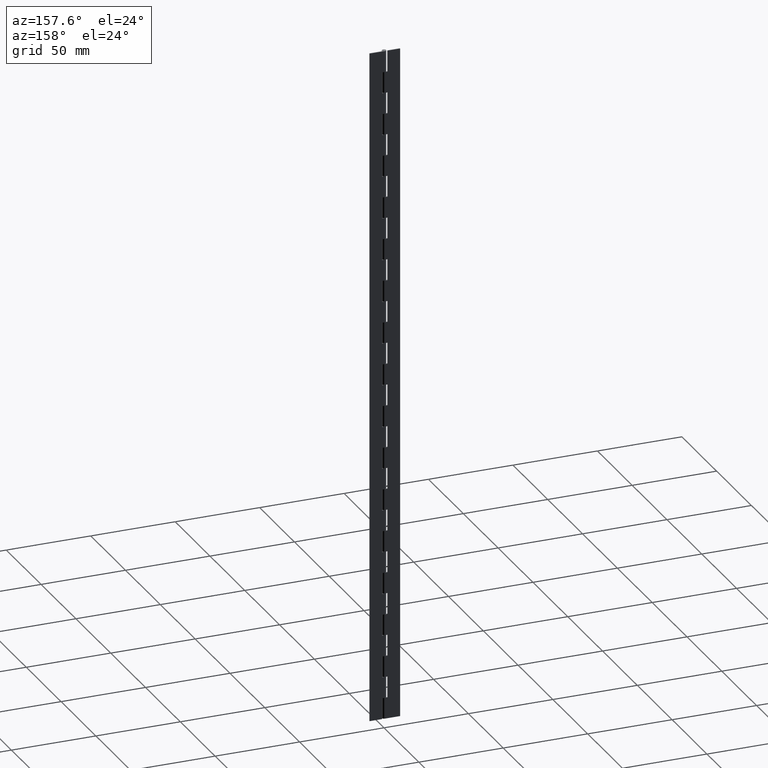
[diagram: clean part render]
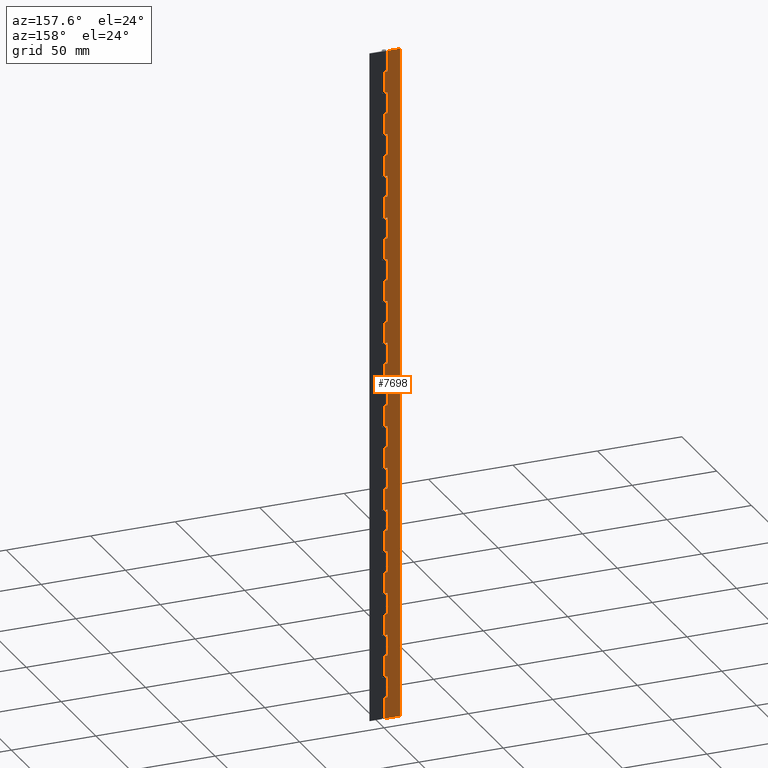
[diagram: same view with one face highlighted and labeled with its STEP entity id]
A machine part, auxiliary view. The second image highlights one B-rep face of the part: STEP entity #7698.
In plain terms, the highlighted face is a freeform B-spline surface patch.
Its self-contained STEP definition (entity closure, byte-faithful):
#4495=CARTESIAN_POINT('',(-1.599998000000000,1.249999999999972,387.500000000000000));
#4496=VERTEX_POINT('',#4495);
#4502=CARTESIAN_POINT('',(-1.599998000000000,1.250000000000000,400.0));
#4503=VERTEX_POINT('',#4502);
#4504=CARTESIAN_POINT('',(-1.599998000000000,1.249999999999972,387.500000000000000));
#4505=CARTESIAN_POINT('',(-1.599998000000000,1.250000000000000,400.0));
#4506=QUASI_UNIFORM_CURVE('',1,(#4504,#4505),.UNSPECIFIED.,.F.,.U.);
#4507=EDGE_CURVE('',#4496,#4503,#4506,.T.);
#4524=CARTESIAN_POINT('',(0.0,1.250000000000000,387.500000000000000));
#4525=VERTEX_POINT('',#4524);
#4545=CARTESIAN_POINT('',(0.0,1.250000000000000,387.500000000000000));
#4546=CARTESIAN_POINT('',(-1.599998000000000,1.249999999999972,387.500000000000000));
#4547=QUASI_UNIFORM_CURVE('',1,(#4545,#4546),.UNSPECIFIED.,.F.,.U.);
#4548=EDGE_CURVE('',#4525,#4496,#4547,.T.);
#4592=CARTESIAN_POINT('',(0.0,1.250000000000000,375.0));
#4593=VERTEX_POINT('',#4592);
#4650=CARTESIAN_POINT('',(-1.599998000000000,1.249999999999972,375.0));
#4651=VERTEX_POINT('',#4650);
#4657=CARTESIAN_POINT('',(-1.599998000000000,1.249999999999972,375.0));
#4658=CARTESIAN_POINT('',(0.0,1.250000000000000,375.0));
#4659=QUASI_UNIFORM_CURVE('',1,(#4657,#4658),.UNSPECIFIED.,.F.,.U.);
#4660=EDGE_CURVE('',#4651,#4593,#4659,.T.);
#4677=CARTESIAN_POINT('',(-1.599998000000000,1.249999999999972,362.500000000000000));
#4678=VERTEX_POINT('',#4677);
#4684=CARTESIAN_POINT('',(-1.599998000000000,1.249999999999972,362.500000000000000));
#4685=CARTESIAN_POINT('',(-1.599998000000000,1.249999999999972,375.0));
#4686=QUASI_UNIFORM_CURVE('',1,(#4684,#4685),.UNSPECIFIED.,.F.,.U.);
#4687=EDGE_CURVE('',#4678,#4651,#4686,.T.);
#4700=CARTESIAN_POINT('',(0.0,1.250000000000000,362.500000000000000));
#4701=VERTEX_POINT('',#4700);
#4721=CARTESIAN_POINT('',(0.0,1.250000000000000,362.500000000000000));
#4722=CARTESIAN_POINT('',(-1.599998000000000,1.249999999999972,362.500000000000000));
#4723=QUASI_UNIFORM_CURVE('',1,(#4721,#4722),.UNSPECIFIED.,.F.,.U.);
#4724=EDGE_CURVE('',#4701,#4678,#4723,.T.);
#4768=CARTESIAN_POINT('',(0.0,1.250000000000000,350.0));
#4769=VERTEX_POINT('',#4768);
#4826=CARTESIAN_POINT('',(-1.599998000000000,1.249999999999972,350.0));
#4827=VERTEX_POINT('',#4826);
#4833=CARTESIAN_POINT('',(-1.599998000000000,1.249999999999972,350.0));
#4834=CARTESIAN_POINT('',(0.0,1.250000000000000,350.0));
#4835=QUASI_UNIFORM_CURVE('',1,(#4833,#4834),.UNSPECIFIED.,.F.,.U.);
#4836=EDGE_CURVE('',#4827,#4769,#4835,.T.);
#4853=CARTESIAN_POINT('',(-1.599998000000000,1.249999999999972,337.500000000000000));
#4854=VERTEX_POINT('',#4853);
#4860=CARTESIAN_POINT('',(-1.599998000000000,1.249999999999972,337.500000000000000));
#4861=CARTESIAN_POINT('',(-1.599998000000000,1.249999999999972,350.0));
#4862=QUASI_UNIFORM_CURVE('',1,(#4860,#4861),.UNSPECIFIED.,.F.,.U.);
#4863=EDGE_CURVE('',#4854,#4827,#4862,.T.);
#4876=CARTESIAN_POINT('',(0.0,1.250000000000000,337.500000000000000));
#4877=VERTEX_POINT('',#4876);
#4897=CARTESIAN_POINT('',(0.0,1.250000000000000,337.500000000000000));
#4898=CARTESIAN_POINT('',(-1.599998000000000,1.249999999999972,337.500000000000000));
#4899=QUASI_UNIFORM_CURVE('',1,(#4897,#4898),.UNSPECIFIED.,.F.,.U.);
#4900=EDGE_CURVE('',#4877,#4854,#4899,.T.);
#4944=CARTESIAN_POINT('',(0.0,1.250000000000000,325.0));
#4945=VERTEX_POINT('',#4944);
#5002=CARTESIAN_POINT('',(-1.599998000000000,1.249999999999972,325.0));
#5003=VERTEX_POINT('',#5002);
#5009=CARTESIAN_POINT('',(-1.599998000000000,1.249999999999972,325.0));
#5010=CARTESIAN_POINT('',(0.0,1.250000000000000,325.0));
#5011=QUASI_UNIFORM_CURVE('',1,(#5009,#5010),.UNSPECIFIED.,.F.,.U.);
#5012=EDGE_CURVE('',#5003,#4945,#5011,.T.);
#5029=CARTESIAN_POINT('',(-1.599998000000000,1.249999999999972,312.500000000000000));
#5030=VERTEX_POINT('',#5029);
#5036=CARTESIAN_POINT('',(-1.599998000000000,1.249999999999972,312.500000000000000));
#5037=CARTESIAN_POINT('',(-1.599998000000000,1.249999999999972,325.0));
#5038=QUASI_UNIFORM_CURVE('',1,(#5036,#5037),.UNSPECIFIED.,.F.,.U.);
#5039=EDGE_CURVE('',#5030,#5003,#5038,.T.);
#5052=CARTESIAN_POINT('',(0.0,1.250000000000000,312.500000000000000));
#5053=VERTEX_POINT('',#5052);
#5073=CARTESIAN_POINT('',(0.0,1.250000000000000,312.500000000000000));
#5074=CARTESIAN_POINT('',(-1.599998000000000,1.249999999999972,312.500000000000000));
#5075=QUASI_UNIFORM_CURVE('',1,(#5073,#5074),.UNSPECIFIED.,.F.,.U.);
#5076=EDGE_CURVE('',#5053,#5030,#5075,.T.);
#5120=CARTESIAN_POINT('',(0.0,1.250000000000000,300.0));
#5121=VERTEX_POINT('',#5120);
#5178=CARTESIAN_POINT('',(-1.599998000000000,1.249999999999972,300.0));
#5179=VERTEX_POINT('',#5178);
#5185=CARTESIAN_POINT('',(-1.599998000000000,1.249999999999972,300.0));
#5186=CARTESIAN_POINT('',(0.0,1.250000000000000,300.0));
#5187=QUASI_UNIFORM_CURVE('',1,(#5185,#5186),.UNSPECIFIED.,.F.,.U.);
#5188=EDGE_CURVE('',#5179,#5121,#5187,.T.);
#5205=CARTESIAN_POINT('',(-1.599998000000000,1.249999999999972,287.500000000000000));
#5206=VERTEX_POINT('',#5205);
#5212=CARTESIAN_POINT('',(-1.599998000000000,1.249999999999972,287.500000000000000));
#5213=CARTESIAN_POINT('',(-1.599998000000000,1.249999999999972,300.0));
#5214=QUASI_UNIFORM_CURVE('',1,(#5212,#5213),.UNSPECIFIED.,.F.,.U.);
#5215=EDGE_CURVE('',#5206,#5179,#5214,.T.);
#5228=CARTESIAN_POINT('',(0.0,1.250000000000000,287.500000000000000));
#5229=VERTEX_POINT('',#5228);
#5249=CARTESIAN_POINT('',(0.0,1.250000000000000,287.500000000000000));
#5250=CARTESIAN_POINT('',(-1.599998000000000,1.249999999999972,287.500000000000000));
#5251=QUASI_UNIFORM_CURVE('',1,(#5249,#5250),.UNSPECIFIED.,.F.,.U.);
#5252=EDGE_CURVE('',#5229,#5206,#5251,.T.);
#5296=CARTESIAN_POINT('',(0.0,1.250000000000000,275.0));
#5297=VERTEX_POINT('',#5296);
#5354=CARTESIAN_POINT('',(-1.599998000000000,1.249999999999972,275.0));
#5355=VERTEX_POINT('',#5354);
#5361=CARTESIAN_POINT('',(-1.599998000000000,1.249999999999972,275.0));
#5362=CARTESIAN_POINT('',(0.0,1.250000000000000,275.0));
#5363=QUASI_UNIFORM_CURVE('',1,(#5361,#5362),.UNSPECIFIED.,.F.,.U.);
#5364=EDGE_CURVE('',#5355,#5297,#5363,.T.);
#5381=CARTESIAN_POINT('',(-1.599998000000000,1.249999999999972,262.500000000000000));
#5382=VERTEX_POINT('',#5381);
#5388=CARTESIAN_POINT('',(-1.599998000000000,1.249999999999972,262.500000000000000));
#5389=CARTESIAN_POINT('',(-1.599998000000000,1.249999999999972,275.0));
#5390=QUASI_UNIFORM_CURVE('',1,(#5388,#5389),.UNSPECIFIED.,.F.,.U.);
#5391=EDGE_CURVE('',#5382,#5355,#5390,.T.);
#5404=CARTESIAN_POINT('',(0.0,1.250000000000000,262.500000000000000));
#5405=VERTEX_POINT('',#5404);
#5425=CARTESIAN_POINT('',(0.0,1.250000000000000,262.500000000000000));
#5426=CARTESIAN_POINT('',(-1.599998000000000,1.249999999999972,262.500000000000000));
#5427=QUASI_UNIFORM_CURVE('',1,(#5425,#5426),.UNSPECIFIED.,.F.,.U.);
#5428=EDGE_CURVE('',#5405,#5382,#5427,.T.);
#5472=CARTESIAN_POINT('',(0.0,1.250000000000000,250.0));
#5473=VERTEX_POINT('',#5472);
#5530=CARTESIAN_POINT('',(-1.599998000000000,1.249999999999972,250.0));
#5531=VERTEX_POINT('',#5530);
#5537=CARTESIAN_POINT('',(-1.599998000000000,1.249999999999972,250.0));
#5538=CARTESIAN_POINT('',(0.0,1.250000000000000,250.0));
#5539=QUASI_UNIFORM_CURVE('',1,(#5537,#5538),.UNSPECIFIED.,.F.,.U.);
#5540=EDGE_CURVE('',#5531,#5473,#5539,.T.);
#5557=CARTESIAN_POINT('',(-1.599998000000000,1.249999999999972,237.500000000000000));
#5558=VERTEX_POINT('',#5557);
#5564=CARTESIAN_POINT('',(-1.599998000000000,1.249999999999972,237.500000000000000));
#5565=CARTESIAN_POINT('',(-1.599998000000000,1.249999999999972,250.0));
#5566=QUASI_UNIFORM_CURVE('',1,(#5564,#5565),.UNSPECIFIED.,.F.,.U.);
#5567=EDGE_CURVE('',#5558,#5531,#5566,.T.);
#5580=CARTESIAN_POINT('',(0.0,1.250000000000000,237.500000000000000));
#5581=VERTEX_POINT('',#5580);
#5601=CARTESIAN_POINT('',(0.0,1.250000000000000,237.500000000000000));
#5602=CARTESIAN_POINT('',(-1.599998000000000,1.249999999999972,237.500000000000000));
#5603=QUASI_UNIFORM_CURVE('',1,(#5601,#5602),.UNSPECIFIED.,.F.,.U.);
#5604=EDGE_CURVE('',#5581,#5558,#5603,.T.);
#5648=CARTESIAN_POINT('',(0.0,1.250000000000000,225.0));
#5649=VERTEX_POINT('',#5648);
#5706=CARTESIAN_POINT('',(-1.599998000000000,1.249999999999972,225.0));
#5707=VERTEX_POINT('',#5706);
#5713=CARTESIAN_POINT('',(-1.599998000000000,1.249999999999972,225.0));
#5714=CARTESIAN_POINT('',(0.0,1.250000000000000,225.0));
#5715=QUASI_UNIFORM_CURVE('',1,(#5713,#5714),.UNSPECIFIED.,.F.,.U.);
#5716=EDGE_CURVE('',#5707,#5649,#5715,.T.);
#5733=CARTESIAN_POINT('',(-1.599998000000000,1.249999999999972,212.500000000000000));
#5734=VERTEX_POINT('',#5733);
#5740=CARTESIAN_POINT('',(-1.599998000000000,1.249999999999972,212.500000000000000));
#5741=CARTESIAN_POINT('',(-1.599998000000000,1.249999999999972,225.0));
#5742=QUASI_UNIFORM_CURVE('',1,(#5740,#5741),.UNSPECIFIED.,.F.,.U.);
#5743=EDGE_CURVE('',#5734,#5707,#5742,.T.);
#5756=CARTESIAN_POINT('',(0.0,1.250000000000000,212.500000000000000));
#5757=VERTEX_POINT('',#5756);
#5777=CARTESIAN_POINT('',(0.0,1.250000000000000,212.500000000000000));
#5778=CARTESIAN_POINT('',(-1.599998000000000,1.249999999999972,212.500000000000000));
#5779=QUASI_UNIFORM_CURVE('',1,(#5777,#5778),.UNSPECIFIED.,.F.,.U.);
#5780=EDGE_CURVE('',#5757,#5734,#5779,.T.);
#5824=CARTESIAN_POINT('',(0.0,1.250000000000000,200.0));
#5825=VERTEX_POINT('',#5824);
#5882=CARTESIAN_POINT('',(-1.599998000000000,1.249999999999972,200.0));
#5883=VERTEX_POINT('',#5882);
#5889=CARTESIAN_POINT('',(-1.599998000000000,1.249999999999972,200.0));
#5890=CARTESIAN_POINT('',(0.0,1.250000000000000,200.0));
#5891=QUASI_UNIFORM_CURVE('',1,(#5889,#5890),.UNSPECIFIED.,.F.,.U.);
#5892=EDGE_CURVE('',#5883,#5825,#5891,.T.);
#5909=CARTESIAN_POINT('',(-1.599998000000000,1.249999999999972,187.500000000000000));
#5910=VERTEX_POINT('',#5909);
#5916=CARTESIAN_POINT('',(-1.599998000000000,1.249999999999972,187.500000000000000));
#5917=CARTESIAN_POINT('',(-1.599998000000000,1.249999999999972,200.0));
#5918=QUASI_UNIFORM_CURVE('',1,(#5916,#5917),.UNSPECIFIED.,.F.,.U.);
#5919=EDGE_CURVE('',#5910,#5883,#5918,.T.);
#5932=CARTESIAN_POINT('',(0.0,1.250000000000000,187.500000000000000));
#5933=VERTEX_POINT('',#5932);
#5953=CARTESIAN_POINT('',(0.0,1.250000000000000,187.500000000000000));
#5954=CARTESIAN_POINT('',(-1.599998000000000,1.249999999999972,187.500000000000000));
#5955=QUASI_UNIFORM_CURVE('',1,(#5953,#5954),.UNSPECIFIED.,.F.,.U.);
#5956=EDGE_CURVE('',#5933,#5910,#5955,.T.);
#6000=CARTESIAN_POINT('',(0.0,1.250000000000000,175.0));
#6001=VERTEX_POINT('',#6000);
#6058=CARTESIAN_POINT('',(-1.599998000000000,1.249999999999972,175.0));
#6059=VERTEX_POINT('',#6058);
#6065=CARTESIAN_POINT('',(-1.599998000000000,1.249999999999972,175.0));
#6066=CARTESIAN_POINT('',(0.0,1.250000000000000,175.0));
#6067=QUASI_UNIFORM_CURVE('',1,(#6065,#6066),.UNSPECIFIED.,.F.,.U.);
#6068=EDGE_CURVE('',#6059,#6001,#6067,.T.);
#6085=CARTESIAN_POINT('',(-1.599998000000000,1.249999999999972,162.500000000000000));
#6086=VERTEX_POINT('',#6085);
#6092=CARTESIAN_POINT('',(-1.599998000000000,1.249999999999972,162.500000000000000));
#6093=CARTESIAN_POINT('',(-1.599998000000000,1.249999999999972,175.0));
#6094=QUASI_UNIFORM_CURVE('',1,(#6092,#6093),.UNSPECIFIED.,.F.,.U.);
#6095=EDGE_CURVE('',#6086,#6059,#6094,.T.);
#6108=CARTESIAN_POINT('',(0.0,1.250000000000000,162.500000000000000));
#6109=VERTEX_POINT('',#6108);
#6129=CARTESIAN_POINT('',(0.0,1.250000000000000,162.500000000000000));
#6130=CARTESIAN_POINT('',(-1.599998000000000,1.249999999999972,162.500000000000000));
#6131=QUASI_UNIFORM_CURVE('',1,(#6129,#6130),.UNSPECIFIED.,.F.,.U.);
#6132=EDGE_CURVE('',#6109,#6086,#6131,.T.);
#6176=CARTESIAN_POINT('',(0.0,1.250000000000000,150.0));
#6177=VERTEX_POINT('',#6176);
#6234=CARTESIAN_POINT('',(-1.599998000000000,1.249999999999972,150.0));
#6235=VERTEX_POINT('',#6234);
#6241=CARTESIAN_POINT('',(-1.599998000000000,1.249999999999972,150.0));
#6242=CARTESIAN_POINT('',(0.0,1.250000000000000,150.0));
#6243=QUASI_UNIFORM_CURVE('',1,(#6241,#6242),.UNSPECIFIED.,.F.,.U.);
#6244=EDGE_CURVE('',#6235,#6177,#6243,.T.);
#6261=CARTESIAN_POINT('',(-1.599998000000000,1.249999999999972,137.500000000000000));
#6262=VERTEX_POINT('',#6261);
#6268=CARTESIAN_POINT('',(-1.599998000000000,1.249999999999972,137.500000000000000));
#6269=CARTESIAN_POINT('',(-1.599998000000000,1.249999999999972,150.0));
#6270=QUASI_UNIFORM_CURVE('',1,(#6268,#6269),.UNSPECIFIED.,.F.,.U.);
#6271=EDGE_CURVE('',#6262,#6235,#6270,.T.);
#6284=CARTESIAN_POINT('',(0.0,1.250000000000000,137.500000000000000));
#6285=VERTEX_POINT('',#6284);
#6305=CARTESIAN_POINT('',(0.0,1.250000000000000,137.500000000000000));
#6306=CARTESIAN_POINT('',(-1.599998000000000,1.249999999999972,137.500000000000000));
#6307=QUASI_UNIFORM_CURVE('',1,(#6305,#6306),.UNSPECIFIED.,.F.,.U.);
#6308=EDGE_CURVE('',#6285,#6262,#6307,.T.);
#6352=CARTESIAN_POINT('',(0.0,1.250000000000000,125.0));
#6353=VERTEX_POINT('',#6352);
#6410=CARTESIAN_POINT('',(-1.599998000000000,1.249999999999972,125.0));
#6411=VERTEX_POINT('',#6410);
#6417=CARTESIAN_POINT('',(-1.599998000000000,1.249999999999972,125.0));
#6418=CARTESIAN_POINT('',(0.0,1.250000000000000,125.0));
#6419=QUASI_UNIFORM_CURVE('',1,(#6417,#6418),.UNSPECIFIED.,.F.,.U.);
#6420=EDGE_CURVE('',#6411,#6353,#6419,.T.);
#6437=CARTESIAN_POINT('',(-1.599998000000000,1.249999999999972,112.500000000000000));
#6438=VERTEX_POINT('',#6437);
#6444=CARTESIAN_POINT('',(-1.599998000000000,1.249999999999972,112.500000000000000));
#6445=CARTESIAN_POINT('',(-1.599998000000000,1.249999999999972,125.0));
#6446=QUASI_UNIFORM_CURVE('',1,(#6444,#6445),.UNSPECIFIED.,.F.,.U.);
#6447=EDGE_CURVE('',#6438,#6411,#6446,.T.);
#6460=CARTESIAN_POINT('',(0.0,1.250000000000000,112.500000000000000));
#6461=VERTEX_POINT('',#6460);
#6481=CARTESIAN_POINT('',(0.0,1.250000000000000,112.500000000000000));
#6482=CARTESIAN_POINT('',(-1.599998000000000,1.249999999999972,112.500000000000000));
#6483=QUASI_UNIFORM_CURVE('',1,(#6481,#6482),.UNSPECIFIED.,.F.,.U.);
#6484=EDGE_CURVE('',#6461,#6438,#6483,.T.);
#6528=CARTESIAN_POINT('',(0.0,1.250000000000000,100.0));
#6529=VERTEX_POINT('',#6528);
#6586=CARTESIAN_POINT('',(-1.599998000000000,1.249999999999972,100.0));
#6587=VERTEX_POINT('',#6586);
#6593=CARTESIAN_POINT('',(-1.599998000000000,1.249999999999972,100.0));
#6594=CARTESIAN_POINT('',(0.0,1.250000000000000,100.0));
#6595=QUASI_UNIFORM_CURVE('',1,(#6593,#6594),.UNSPECIFIED.,.F.,.U.);
#6596=EDGE_CURVE('',#6587,#6529,#6595,.T.);
#6613=CARTESIAN_POINT('',(-1.599998000000000,1.249999999999972,87.500000000000000));
#6614=VERTEX_POINT('',#6613);
#6620=CARTESIAN_POINT('',(-1.599998000000000,1.249999999999972,87.500000000000000));
#6621=CARTESIAN_POINT('',(-1.599998000000000,1.249999999999972,100.0));
#6622=QUASI_UNIFORM_CURVE('',1,(#6620,#6621),.UNSPECIFIED.,.F.,.U.);
#6623=EDGE_CURVE('',#6614,#6587,#6622,.T.);
#6636=CARTESIAN_POINT('',(0.0,1.250000000000000,87.500000000000000));
#6637=VERTEX_POINT('',#6636);
#6657=CARTESIAN_POINT('',(0.0,1.250000000000000,87.500000000000000));
#6658=CARTESIAN_POINT('',(-1.599998000000000,1.249999999999972,87.500000000000000));
#6659=QUASI_UNIFORM_CURVE('',1,(#6657,#6658),.UNSPECIFIED.,.F.,.U.);
#6660=EDGE_CURVE('',#6637,#6614,#6659,.T.);
#6704=CARTESIAN_POINT('',(0.0,1.250000000000000,75.0));
#6705=VERTEX_POINT('',#6704);
#6762=CARTESIAN_POINT('',(-1.599998000000000,1.249999999999972,75.0));
#6763=VERTEX_POINT('',#6762);
#6769=CARTESIAN_POINT('',(-1.599998000000000,1.249999999999972,75.0));
#6770=CARTESIAN_POINT('',(0.0,1.250000000000000,75.0));
#6771=QUASI_UNIFORM_CURVE('',1,(#6769,#6770),.UNSPECIFIED.,.F.,.U.);
#6772=EDGE_CURVE('',#6763,#6705,#6771,.T.);
#6789=CARTESIAN_POINT('',(-1.599998000000000,1.249999999999972,62.500000000000000));
#6790=VERTEX_POINT('',#6789);
#6796=CARTESIAN_POINT('',(-1.599998000000000,1.249999999999972,62.500000000000000));
#6797=CARTESIAN_POINT('',(-1.599998000000000,1.249999999999972,75.0));
#6798=QUASI_UNIFORM_CURVE('',1,(#6796,#6797),.UNSPECIFIED.,.F.,.U.);
#6799=EDGE_CURVE('',#6790,#6763,#6798,.T.);
#6812=CARTESIAN_POINT('',(0.0,1.250000000000000,62.500000000000000));
#6813=VERTEX_POINT('',#6812);
#6833=CARTESIAN_POINT('',(0.0,1.250000000000000,62.500000000000000));
#6834=CARTESIAN_POINT('',(-1.599998000000000,1.249999999999972,62.500000000000000));
#6835=QUASI_UNIFORM_CURVE('',1,(#6833,#6834),.UNSPECIFIED.,.F.,.U.);
#6836=EDGE_CURVE('',#6813,#6790,#6835,.T.);
#6880=CARTESIAN_POINT('',(0.0,1.250000000000000,50.0));
#6881=VERTEX_POINT('',#6880);
#6938=CARTESIAN_POINT('',(-1.599998000000000,1.249999999999972,50.0));
#6939=VERTEX_POINT('',#6938);
#6945=CARTESIAN_POINT('',(-1.599998000000000,1.249999999999972,50.0));
#6946=CARTESIAN_POINT('',(0.0,1.250000000000000,50.0));
#6947=QUASI_UNIFORM_CURVE('',1,(#6945,#6946),.UNSPECIFIED.,.F.,.U.);
#6948=EDGE_CURVE('',#6939,#6881,#6947,.T.);
#6965=CARTESIAN_POINT('',(-1.599998000000000,1.249999999999972,37.500000000000000));
#6966=VERTEX_POINT('',#6965);
#6972=CARTESIAN_POINT('',(-1.599998000000000,1.249999999999972,37.500000000000000));
#6973=CARTESIAN_POINT('',(-1.599998000000000,1.249999999999972,50.0));
#6974=QUASI_UNIFORM_CURVE('',1,(#6972,#6973),.UNSPECIFIED.,.F.,.U.);
#6975=EDGE_CURVE('',#6966,#6939,#6974,.T.);
#6988=CARTESIAN_POINT('',(0.0,1.250000000000000,37.500000000000000));
#6989=VERTEX_POINT('',#6988);
#7009=CARTESIAN_POINT('',(0.0,1.250000000000000,37.500000000000000));
#7010=CARTESIAN_POINT('',(-1.599998000000000,1.249999999999972,37.500000000000000));
#7011=QUASI_UNIFORM_CURVE('',1,(#7009,#7010),.UNSPECIFIED.,.F.,.U.);
#7012=EDGE_CURVE('',#6989,#6966,#7011,.T.);
#7056=CARTESIAN_POINT('',(0.0,1.250000000000000,25.0));
#7057=VERTEX_POINT('',#7056);
#7114=CARTESIAN_POINT('',(-1.599998000000000,1.249999999999972,25.0));
#7115=VERTEX_POINT('',#7114);
#7121=CARTESIAN_POINT('',(-1.599998000000000,1.249999999999972,25.0));
#7122=CARTESIAN_POINT('',(0.0,1.250000000000000,25.0));
#7123=QUASI_UNIFORM_CURVE('',1,(#7121,#7122),.UNSPECIFIED.,.F.,.U.);
#7124=EDGE_CURVE('',#7115,#7057,#7123,.T.);
#7141=CARTESIAN_POINT('',(-1.599998000000000,1.249999999999972,12.500000000000000));
#7142=VERTEX_POINT('',#7141);
#7148=CARTESIAN_POINT('',(-1.599998000000000,1.249999999999972,12.500000000000000));
#7149=CARTESIAN_POINT('',(-1.599998000000000,1.249999999999972,25.0));
#7150=QUASI_UNIFORM_CURVE('',1,(#7148,#7149),.UNSPECIFIED.,.F.,.U.);
#7151=EDGE_CURVE('',#7142,#7115,#7150,.T.);
#7164=CARTESIAN_POINT('',(0.0,1.250000000000000,12.500000000000000));
#7165=VERTEX_POINT('',#7164);
#7185=CARTESIAN_POINT('',(0.0,1.250000000000000,12.500000000000000));
#7186=CARTESIAN_POINT('',(-1.599998000000000,1.249999999999972,12.500000000000000));
#7187=QUASI_UNIFORM_CURVE('',1,(#7185,#7186),.UNSPECIFIED.,.F.,.U.);
#7188=EDGE_CURVE('',#7165,#7142,#7187,.T.);
#7234=CARTESIAN_POINT('',(-9.0,1.250000000000000,0.0));
#7235=VERTEX_POINT('',#7234);
#7241=CARTESIAN_POINT('',(0.0,1.250000000000000,0.0));
#7242=VERTEX_POINT('',#7241);
#7243=CARTESIAN_POINT('',(-9.0,1.250000000000000,0.0));
#7244=CARTESIAN_POINT('',(0.0,1.250000000000000,0.0));
#7245=QUASI_UNIFORM_CURVE('',1,(#7243,#7244),.UNSPECIFIED.,.F.,.U.);
#7246=EDGE_CURVE('',#7235,#7242,#7245,.T.);
#7318=CARTESIAN_POINT('',(-9.0,1.250000000000000,400.0));
#7319=VERTEX_POINT('',#7318);
#7320=CARTESIAN_POINT('',(-9.0,1.250000000000000,400.0));
#7321=CARTESIAN_POINT('',(-1.599998000000000,1.250000000000000,400.0));
#7322=QUASI_UNIFORM_CURVE('',1,(#7320,#7321),.UNSPECIFIED.,.F.,.U.);
#7323=EDGE_CURVE('',#7319,#4503,#7322,.T.);
#7553=CARTESIAN_POINT('',(0.0,1.250000000000000,12.500000000000000));
#7554=CARTESIAN_POINT('',(0.0,1.250000000000000,0.0));
#7555=QUASI_UNIFORM_CURVE('',1,(#7553,#7554),.UNSPECIFIED.,.F.,.U.);
#7556=EDGE_CURVE('',#7165,#7242,#7555,.T.);
#7561=CARTESIAN_POINT('',(-9.449549982556254,1.250000000000000,-19.979999224722391));
#7562=CARTESIAN_POINT('',(-9.449549982556254,1.250000000000000,419.980009953558520));
#7563=CARTESIAN_POINT('',(0.449550223955065,1.250000000000000,-19.979999224722391));
#7564=CARTESIAN_POINT('',(0.449550223955065,1.250000000000000,419.980009953558520));
#7565=B_SPLINE_SURFACE_WITH_KNOTS('',1,1,((#7561,#7563),(#7562,#7564)),.UNSPECIFIED.,.F.,.F.,.U.,(2,2),(2,2),(0.0,439.960009178280930),(0.0,9.899100206511319),.UNSPECIFIED.);
#7566=ORIENTED_EDGE('',*,*,#4548,.F.);
#7567=CARTESIAN_POINT('',(0.0,1.250000000000000,387.500000000000000));
#7568=CARTESIAN_POINT('',(0.0,1.250000000000000,375.0));
#7569=QUASI_UNIFORM_CURVE('',1,(#7567,#7568),.UNSPECIFIED.,.F.,.U.);
#7570=EDGE_CURVE('',#4525,#4593,#7569,.T.);
#7571=ORIENTED_EDGE('',*,*,#7570,.T.);
#7572=ORIENTED_EDGE('',*,*,#4660,.F.);
#7573=ORIENTED_EDGE('',*,*,#4687,.F.);
#7574=ORIENTED_EDGE('',*,*,#4724,.F.);
#7575=CARTESIAN_POINT('',(0.0,1.250000000000000,362.500000000000000));
#7576=CARTESIAN_POINT('',(0.0,1.250000000000000,350.0));
#7577=QUASI_UNIFORM_CURVE('',1,(#7575,#7576),.UNSPECIFIED.,.F.,.U.);
#7578=EDGE_CURVE('',#4701,#4769,#7577,.T.);
#7579=ORIENTED_EDGE('',*,*,#7578,.T.);
#7580=ORIENTED_EDGE('',*,*,#4836,.F.);
#7581=ORIENTED_EDGE('',*,*,#4863,.F.);
#7582=ORIENTED_EDGE('',*,*,#4900,.F.);
#7583=CARTESIAN_POINT('',(0.0,1.250000000000000,337.500000000000000));
#7584=CARTESIAN_POINT('',(0.0,1.250000000000000,325.0));
#7585=QUASI_UNIFORM_CURVE('',1,(#7583,#7584),.UNSPECIFIED.,.F.,.U.);
#7586=EDGE_CURVE('',#4877,#4945,#7585,.T.);
#7587=ORIENTED_EDGE('',*,*,#7586,.T.);
#7588=ORIENTED_EDGE('',*,*,#5012,.F.);
#7589=ORIENTED_EDGE('',*,*,#5039,.F.);
#7590=ORIENTED_EDGE('',*,*,#5076,.F.);
#7591=CARTESIAN_POINT('',(0.0,1.250000000000000,312.500000000000000));
#7592=CARTESIAN_POINT('',(0.0,1.250000000000000,300.0));
#7593=QUASI_UNIFORM_CURVE('',1,(#7591,#7592),.UNSPECIFIED.,.F.,.U.);
#7594=EDGE_CURVE('',#5053,#5121,#7593,.T.);
#7595=ORIENTED_EDGE('',*,*,#7594,.T.);
#7596=ORIENTED_EDGE('',*,*,#5188,.F.);
#7597=ORIENTED_EDGE('',*,*,#5215,.F.);
#7598=ORIENTED_EDGE('',*,*,#5252,.F.);
#7599=CARTESIAN_POINT('',(0.0,1.250000000000000,287.500000000000000));
#7600=CARTESIAN_POINT('',(0.0,1.250000000000000,275.0));
#7601=QUASI_UNIFORM_CURVE('',1,(#7599,#7600),.UNSPECIFIED.,.F.,.U.);
#7602=EDGE_CURVE('',#5229,#5297,#7601,.T.);
#7603=ORIENTED_EDGE('',*,*,#7602,.T.);
#7604=ORIENTED_EDGE('',*,*,#5364,.F.);
#7605=ORIENTED_EDGE('',*,*,#5391,.F.);
#7606=ORIENTED_EDGE('',*,*,#5428,.F.);
#7607=CARTESIAN_POINT('',(0.0,1.250000000000000,262.500000000000000));
#7608=CARTESIAN_POINT('',(0.0,1.250000000000000,250.0));
#7609=QUASI_UNIFORM_CURVE('',1,(#7607,#7608),.UNSPECIFIED.,.F.,.U.);
#7610=EDGE_CURVE('',#5405,#5473,#7609,.T.);
#7611=ORIENTED_EDGE('',*,*,#7610,.T.);
#7612=ORIENTED_EDGE('',*,*,#5540,.F.);
#7613=ORIENTED_EDGE('',*,*,#5567,.F.);
#7614=ORIENTED_EDGE('',*,*,#5604,.F.);
#7615=CARTESIAN_POINT('',(0.0,1.250000000000000,237.500000000000000));
#7616=CARTESIAN_POINT('',(0.0,1.250000000000000,225.0));
#7617=QUASI_UNIFORM_CURVE('',1,(#7615,#7616),.UNSPECIFIED.,.F.,.U.);
#7618=EDGE_CURVE('',#5581,#5649,#7617,.T.);
#7619=ORIENTED_EDGE('',*,*,#7618,.T.);
#7620=ORIENTED_EDGE('',*,*,#5716,.F.);
#7621=ORIENTED_EDGE('',*,*,#5743,.F.);
#7622=ORIENTED_EDGE('',*,*,#5780,.F.);
#7623=CARTESIAN_POINT('',(0.0,1.250000000000000,212.500000000000000));
#7624=CARTESIAN_POINT('',(0.0,1.250000000000000,200.0));
#7625=QUASI_UNIFORM_CURVE('',1,(#7623,#7624),.UNSPECIFIED.,.F.,.U.);
#7626=EDGE_CURVE('',#5757,#5825,#7625,.T.);
#7627=ORIENTED_EDGE('',*,*,#7626,.T.);
#7628=ORIENTED_EDGE('',*,*,#5892,.F.);
#7629=ORIENTED_EDGE('',*,*,#5919,.F.);
#7630=ORIENTED_EDGE('',*,*,#5956,.F.);
#7631=CARTESIAN_POINT('',(0.0,1.250000000000000,187.500000000000000));
#7632=CARTESIAN_POINT('',(0.0,1.250000000000000,175.0));
#7633=QUASI_UNIFORM_CURVE('',1,(#7631,#7632),.UNSPECIFIED.,.F.,.U.);
#7634=EDGE_CURVE('',#5933,#6001,#7633,.T.);
#7635=ORIENTED_EDGE('',*,*,#7634,.T.);
#7636=ORIENTED_EDGE('',*,*,#6068,.F.);
#7637=ORIENTED_EDGE('',*,*,#6095,.F.);
#7638=ORIENTED_EDGE('',*,*,#6132,.F.);
#7639=CARTESIAN_POINT('',(0.0,1.250000000000000,162.500000000000000));
#7640=CARTESIAN_POINT('',(0.0,1.250000000000000,150.0));
#7641=QUASI_UNIFORM_CURVE('',1,(#7639,#7640),.UNSPECIFIED.,.F.,.U.);
#7642=EDGE_CURVE('',#6109,#6177,#7641,.T.);
#7643=ORIENTED_EDGE('',*,*,#7642,.T.);
#7644=ORIENTED_EDGE('',*,*,#6244,.F.);
#7645=ORIENTED_EDGE('',*,*,#6271,.F.);
#7646=ORIENTED_EDGE('',*,*,#6308,.F.);
#7647=CARTESIAN_POINT('',(0.0,1.250000000000000,137.500000000000000));
#7648=CARTESIAN_POINT('',(0.0,1.250000000000000,125.0));
#7649=QUASI_UNIFORM_CURVE('',1,(#7647,#7648),.UNSPECIFIED.,.F.,.U.);
#7650=EDGE_CURVE('',#6285,#6353,#7649,.T.);
#7651=ORIENTED_EDGE('',*,*,#7650,.T.);
#7652=ORIENTED_EDGE('',*,*,#6420,.F.);
#7653=ORIENTED_EDGE('',*,*,#6447,.F.);
#7654=ORIENTED_EDGE('',*,*,#6484,.F.);
#7655=CARTESIAN_POINT('',(0.0,1.250000000000000,112.500000000000000));
#7656=CARTESIAN_POINT('',(0.0,1.250000000000000,100.0));
#7657=QUASI_UNIFORM_CURVE('',1,(#7655,#7656),.UNSPECIFIED.,.F.,.U.);
#7658=EDGE_CURVE('',#6461,#6529,#7657,.T.);
#7659=ORIENTED_EDGE('',*,*,#7658,.T.);
#7660=ORIENTED_EDGE('',*,*,#6596,.F.);
#7661=ORIENTED_EDGE('',*,*,#6623,.F.);
#7662=ORIENTED_EDGE('',*,*,#6660,.F.);
#7663=CARTESIAN_POINT('',(0.0,1.250000000000000,87.500000000000000));
#7664=CARTESIAN_POINT('',(0.0,1.250000000000000,75.0));
#7665=QUASI_UNIFORM_CURVE('',1,(#7663,#7664),.UNSPECIFIED.,.F.,.U.);
#7666=EDGE_CURVE('',#6637,#6705,#7665,.T.);
#7667=ORIENTED_EDGE('',*,*,#7666,.T.);
#7668=ORIENTED_EDGE('',*,*,#6772,.F.);
#7669=ORIENTED_EDGE('',*,*,#6799,.F.);
#7670=ORIENTED_EDGE('',*,*,#6836,.F.);
#7671=CARTESIAN_POINT('',(0.0,1.250000000000000,62.500000000000000));
#7672=CARTESIAN_POINT('',(0.0,1.250000000000000,50.0));
#7673=QUASI_UNIFORM_CURVE('',1,(#7671,#7672),.UNSPECIFIED.,.F.,.U.);
#7674=EDGE_CURVE('',#6813,#6881,#7673,.T.);
#7675=ORIENTED_EDGE('',*,*,#7674,.T.);
#7676=ORIENTED_EDGE('',*,*,#6948,.F.);
#7677=ORIENTED_EDGE('',*,*,#6975,.F.);
#7678=ORIENTED_EDGE('',*,*,#7012,.F.);
#7679=CARTESIAN_POINT('',(0.0,1.250000000000000,37.500000000000000));
#7680=CARTESIAN_POINT('',(0.0,1.250000000000000,25.0));
#7681=QUASI_UNIFORM_CURVE('',1,(#7679,#7680),.UNSPECIFIED.,.F.,.U.);
#7682=EDGE_CURVE('',#6989,#7057,#7681,.T.);
#7683=ORIENTED_EDGE('',*,*,#7682,.T.);
#7684=ORIENTED_EDGE('',*,*,#7124,.F.);
#7685=ORIENTED_EDGE('',*,*,#7151,.F.);
#7686=ORIENTED_EDGE('',*,*,#7188,.F.);
#7687=ORIENTED_EDGE('',*,*,#7556,.T.);
#7688=ORIENTED_EDGE('',*,*,#7246,.F.);
#7689=CARTESIAN_POINT('',(-9.0,1.250000000000000,400.0));
#7690=CARTESIAN_POINT('',(-9.0,1.250000000000000,0.0));
#7691=QUASI_UNIFORM_CURVE('',1,(#7689,#7690),.UNSPECIFIED.,.F.,.U.);
#7692=EDGE_CURVE('',#7319,#7235,#7691,.T.);
#7693=ORIENTED_EDGE('',*,*,#7692,.F.);
#7694=ORIENTED_EDGE('',*,*,#7323,.T.);
#7695=ORIENTED_EDGE('',*,*,#4507,.F.);
#7696=EDGE_LOOP('',(#7566,#7571,#7572,#7573,#7574,#7579,#7580,#7581,#7582,#7587,#7588,#7589,#7590,#7595,#7596,#7597,#7598,#7603,#7604,#7605,#7606,#7611,#7612,#7613,#7614,#7619,#7620,#7621,#7622,#7627,#7628,#7629,#7630,#7635,#7636,#7637,#7638,#7643,#7644,#7645,#7646,#7651,#7652,#7653,#7654,#7659,#7660,#7661,#7662,#7667,#7668,#7669,#7670,#7675,#7676,#7677,#7678,#7683,#7684,#7685,#7686,#7687,#7688,#7693,#7694,#7695));
#7697=FACE_OUTER_BOUND('',#7696,.T.);
#7698=ADVANCED_FACE('',(#7697),#7565,.T.);